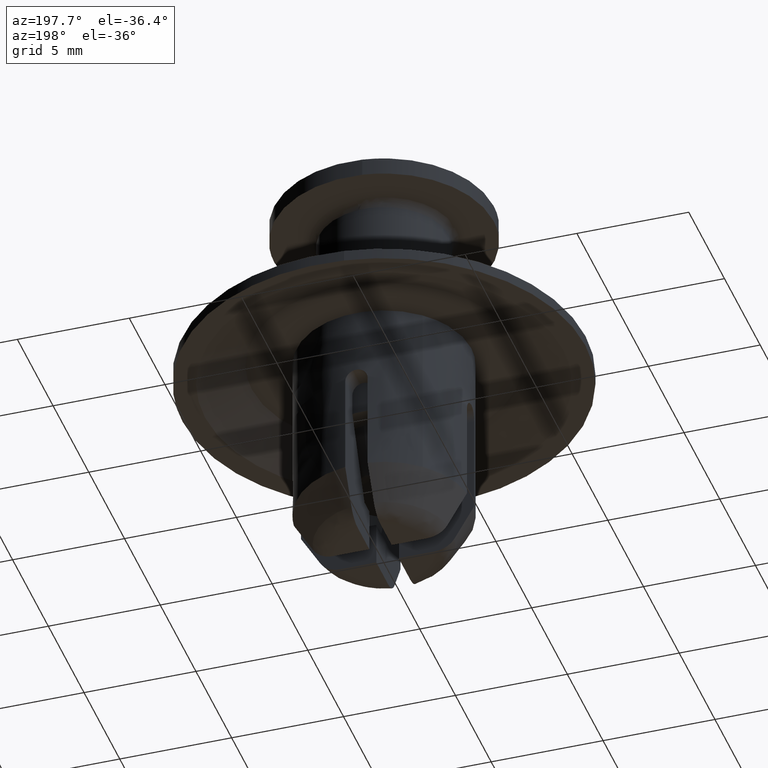
[diagram: clean part render]
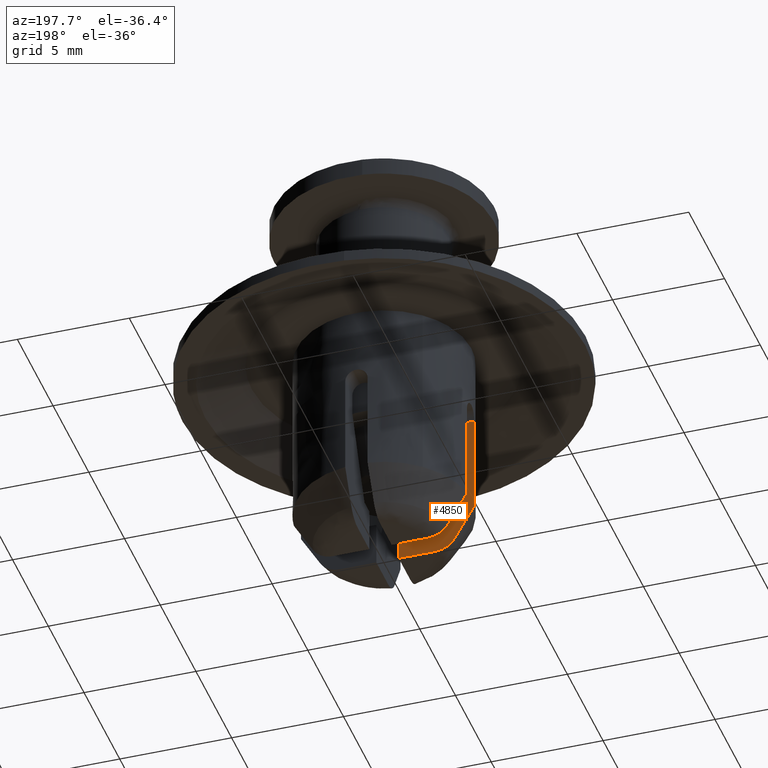
[diagram: same view with one face highlighted and labeled with its STEP entity id]
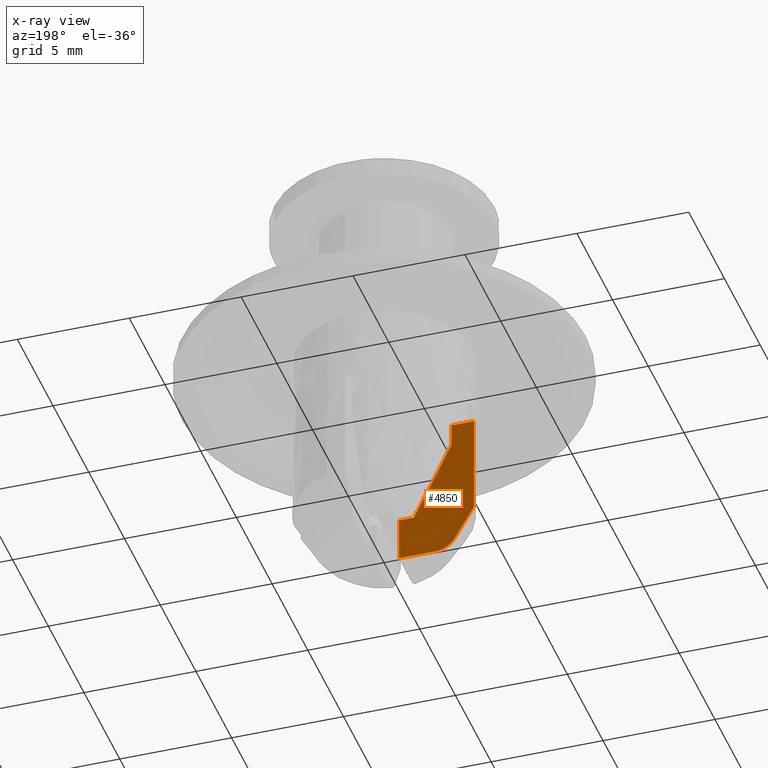
[diagram: x-ray of the same camera — body ghosted, the highlighted face saturated]
A machine part, auxiliary view. The second image highlights one B-rep face of the part: STEP entity #4850.
The next image is the same camera in x-ray: the body ghosted, the highlighted face saturated — about 1% of this face is hidden behind the body in this view.
In plain terms, the highlighted face is a freeform B-spline surface patch.
Its self-contained STEP definition (entity closure, byte-faithful):
#2667=CARTESIAN_POINT('',(-2.856570984145660,-0.500000000000000,-12.500001907347119));
#2668=VERTEX_POINT('',#2667);
#2682=CARTESIAN_POINT('',(-2.856570984146635,-0.500000000000000,-11.500001907348681));
#2683=VERTEX_POINT('',#2682);
#2684=CARTESIAN_POINT('',(-2.856570984145660,-0.500000000000000,-12.500001907347119));
#2685=CARTESIAN_POINT('',(-2.856570984146635,-0.500000000000000,-11.500001907348681));
#2686=QUASI_UNIFORM_CURVE('',1,(#2684,#2685),.UNSPECIFIED.,.F.,.U.);
#2687=EDGE_CURVE('',#2668,#2683,#2686,.T.);
#3084=CARTESIAN_POINT('',(-3.867815536518810,-0.500000000000000,-11.500001907348681));
#3085=VERTEX_POINT('',#3084);
#3127=CARTESIAN_POINT('',(-3.867815536518810,-0.500000000000000,-16.008142471313551));
#3128=VERTEX_POINT('',#3127);
#3129=CARTESIAN_POINT('',(-3.867815536518810,-0.500000000000000,-11.500001907348681));
#3130=CARTESIAN_POINT('',(-3.867815536518810,-0.500000000000000,-16.008142471313551));
#3131=QUASI_UNIFORM_CURVE('',1,(#3129,#3130),.UNSPECIFIED.,.F.,.U.);
#3132=EDGE_CURVE('',#3085,#3128,#3131,.T.);
#3575=CARTESIAN_POINT('',(-0.500000000000000,-0.500000000000000,-16.000001907348651));
#3576=VERTEX_POINT('',#3575);
#3577=CARTESIAN_POINT('',(-1.165173062149000,-0.500000000000000,-16.000001907348651));
#3578=VERTEX_POINT('',#3577);
#3579=CARTESIAN_POINT('',(-0.500000000000000,-0.500000000000000,-16.000001907348651));
#3580=CARTESIAN_POINT('',(-1.165173062149000,-0.500000000000000,-16.000001907348651));
#3581=QUASI_UNIFORM_CURVE('',1,(#3579,#3580),.UNSPECIFIED.,.F.,.U.);
#3582=EDGE_CURVE('',#3576,#3578,#3581,.T.);
#3856=CARTESIAN_POINT('',(-1.165173062148997,-0.500000000000000,-16.000001907348651));
#3857=CARTESIAN_POINT('',(-1.311750987021030,-0.500000000000000,-15.711137761509891));
#3858=CARTESIAN_POINT('',(-1.455193186913654,-0.500000000000000,-15.420583597274170));
#3859=CARTESIAN_POINT('',(-1.739631642482799,-0.500000000000000,-14.838453630572090));
#3860=CARTESIAN_POINT('',(-1.880536246519021,-0.500000000000000,-14.546761360162920));
#3861=CARTESIAN_POINT('',(-2.301335183030462,-0.500000000000000,-13.670770845161581));
#3862=CARTESIAN_POINT('',(-2.579359867016188,-0.500000000000000,-13.085580477403250));
#3863=CARTESIAN_POINT('',(-2.856570984145658,-0.500000000000000,-12.500001907347119));
#3864=B_SPLINE_CURVE_WITH_KNOTS('',3,(#3856,#3857,#3858,#3859,#3860,#3861,#3862,#3863),.UNSPECIFIED.,.F.,.U.,(4,2,2,4),(0.0,0.250000000000000,0.500000000000000,1.0),.UNSPECIFIED.);
#3865=EDGE_CURVE('',#3578,#2668,#3864,.T.);
#4048=CARTESIAN_POINT('',(-2.997256992116885,-0.500000000000000,-17.500000478452950));
#4049=VERTEX_POINT('',#4048);
#4072=CARTESIAN_POINT('',(-3.867815536518792,-0.500000000000000,-16.008142471313541));
#4073=CARTESIAN_POINT('',(-3.578143819014454,-0.500000000000000,-16.505728773998420));
#4074=CARTESIAN_POINT('',(-3.288103931369518,-0.500000000000000,-17.003105409582211));
#4075=CARTESIAN_POINT('',(-2.997256992116885,-0.500000000000000,-17.500000478452950));
#4076=QUASI_UNIFORM_CURVE('',3,(#4072,#4073,#4074,#4075),.UNSPECIFIED.,.F.,.U.);
#4077=EDGE_CURVE('',#3128,#4049,#4076,.T.);
#4101=CARTESIAN_POINT('',(-2.114333309537090,-0.500000000000000,-18.000001907348651));
#4102=VERTEX_POINT('',#4101);
#4137=CARTESIAN_POINT('',(-2.997256992116875,-0.500000000000000,-17.500000478452950));
#4138=CARTESIAN_POINT('',(-2.975012154051959,-0.500000000000000,-17.538004641482711));
#4139=CARTESIAN_POINT('',(-2.950282781435749,-0.500000000000000,-17.574489959979971));
#4140=CARTESIAN_POINT('',(-2.895781554595693,-0.500000000000000,-17.644378029410280));
#4141=CARTESIAN_POINT('',(-2.865908986809629,-0.500000000000000,-17.677828369132119));
#4142=CARTESIAN_POINT('',(-2.802409087177004,-0.500000000000000,-17.740040100424551));
#4143=CARTESIAN_POINT('',(-2.768483575263952,-0.500000000000000,-17.769124620062449));
#4144=CARTESIAN_POINT('',(-2.697252261271863,-0.500000000000000,-17.822445718139161));
#4145=CARTESIAN_POINT('',(-2.623229735578109,-0.500000000000000,-17.870549239612760));
#4146=CARTESIAN_POINT('',(-2.543847407137196,-0.500000000000000,-17.908633749846850));
#4147=CARTESIAN_POINT('',(-2.461760812691519,-0.500000000000000,-17.941663209965370));
#4148=CARTESIAN_POINT('',(-2.419151606461460,-0.500000000000000,-17.955669699960971));
#4149=CARTESIAN_POINT('',(-2.290752419509980,-0.500000000000000,-17.988907489295269));
#4150=CARTESIAN_POINT('',(-2.203414484369943,-0.500000000000000,-18.000001907348651));
#4151=CARTESIAN_POINT('',(-2.114333309537090,-0.500000000000000,-18.000001907348651));
#4152=B_SPLINE_CURVE_WITH_KNOTS('',3,(#4137,#4138,#4139,#4140,#4141,#4142,#4143,#4144,#4145,#4146,#4147,#4148,#4149,#4150,#4151),.UNSPECIFIED.,.F.,.U.,(4,2,2,2,1,2,2,4),(0.0,0.125000000000000,0.249999999999999,0.374999999999999,0.499999999999999,0.624999999999998,0.749999999999998,1.0),.UNSPECIFIED.);
#4153=EDGE_CURVE('',#4049,#4102,#4152,.T.);
#4163=CARTESIAN_POINT('',(-0.500000000000000,-0.500000000000000,-18.000001907348651));
#4164=VERTEX_POINT('',#4163);
#4165=CARTESIAN_POINT('',(-0.500000000000000,-0.500000000000000,-18.000001907348651));
#4166=CARTESIAN_POINT('',(-2.114333309537090,-0.500000000000000,-18.000001907348651));
#4167=QUASI_UNIFORM_CURVE('',1,(#4165,#4166),.UNSPECIFIED.,.F.,.U.);
#4168=EDGE_CURVE('',#4164,#4102,#4167,.T.);
#4582=CARTESIAN_POINT('',(-0.500000000000000,-0.500000000000000,-16.000001907348651));
#4583=CARTESIAN_POINT('',(-0.500000000000000,-0.500000000000000,-18.000001907348651));
#4584=QUASI_UNIFORM_CURVE('',1,(#4582,#4583),.UNSPECIFIED.,.F.,.U.);
#4585=EDGE_CURVE('',#3576,#4164,#4584,.T.);
#4824=CARTESIAN_POINT('',(-3.867815536518810,-0.500000000000000,-11.500001907348681));
#4825=CARTESIAN_POINT('',(-2.856570984146635,-0.500000000000000,-11.500001907348681));
#4826=QUASI_UNIFORM_CURVE('',1,(#4824,#4825),.UNSPECIFIED.,.F.,.U.);
#4827=EDGE_CURVE('',#3085,#2683,#4826,.T.);
#4834=CARTESIAN_POINT('',(-4.036037884425802,-0.500000000000000,-11.175326919946940));
#4835=CARTESIAN_POINT('',(-4.036037884425802,-0.500000000000000,-18.324677069093980));
#4836=CARTESIAN_POINT('',(-0.331777531650540,-0.500000000000000,-11.175326919946940));
#4837=CARTESIAN_POINT('',(-0.331777531650540,-0.500000000000000,-18.324677069093980));
#4838=B_SPLINE_SURFACE_WITH_KNOTS('',1,1,((#4834,#4836),(#4835,#4837)),.UNSPECIFIED.,.F.,.F.,.U.,(2,2),(2,2),(0.0,7.149350149147040),(0.0,3.704260352775263),.UNSPECIFIED.);
#4839=ORIENTED_EDGE('',*,*,#2687,.F.);
#4840=ORIENTED_EDGE('',*,*,#3865,.F.);
#4841=ORIENTED_EDGE('',*,*,#3582,.F.);
#4842=ORIENTED_EDGE('',*,*,#4585,.T.);
#4843=ORIENTED_EDGE('',*,*,#4168,.T.);
#4844=ORIENTED_EDGE('',*,*,#4153,.F.);
#4845=ORIENTED_EDGE('',*,*,#4077,.F.);
#4846=ORIENTED_EDGE('',*,*,#3132,.F.);
#4847=ORIENTED_EDGE('',*,*,#4827,.T.);
#4848=EDGE_LOOP('',(#4839,#4840,#4841,#4842,#4843,#4844,#4845,#4846,#4847));
#4849=FACE_OUTER_BOUND('',#4848,.T.);
#4850=ADVANCED_FACE('',(#4849),#4838,.F.);